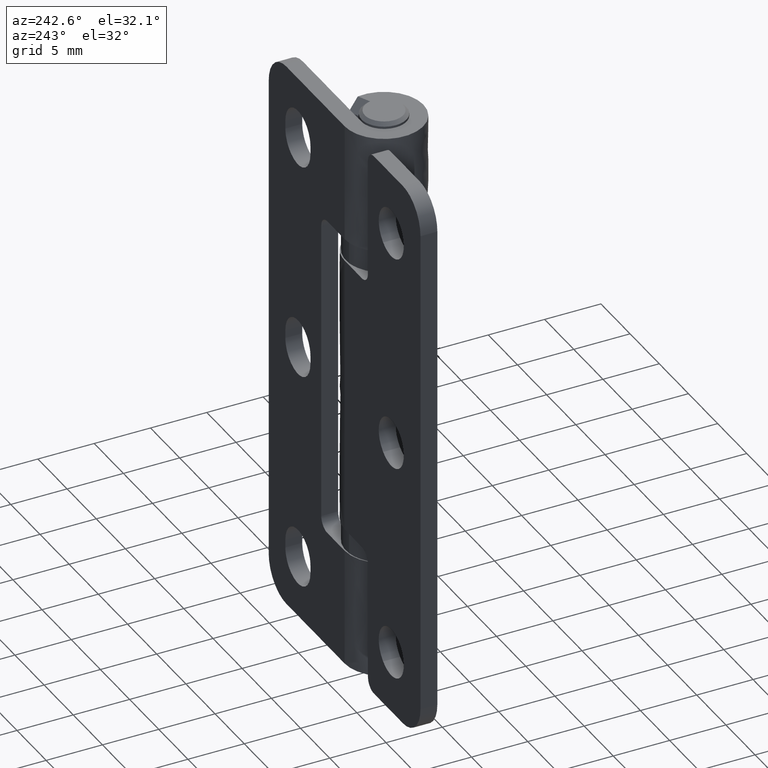
[diagram: clean part render]
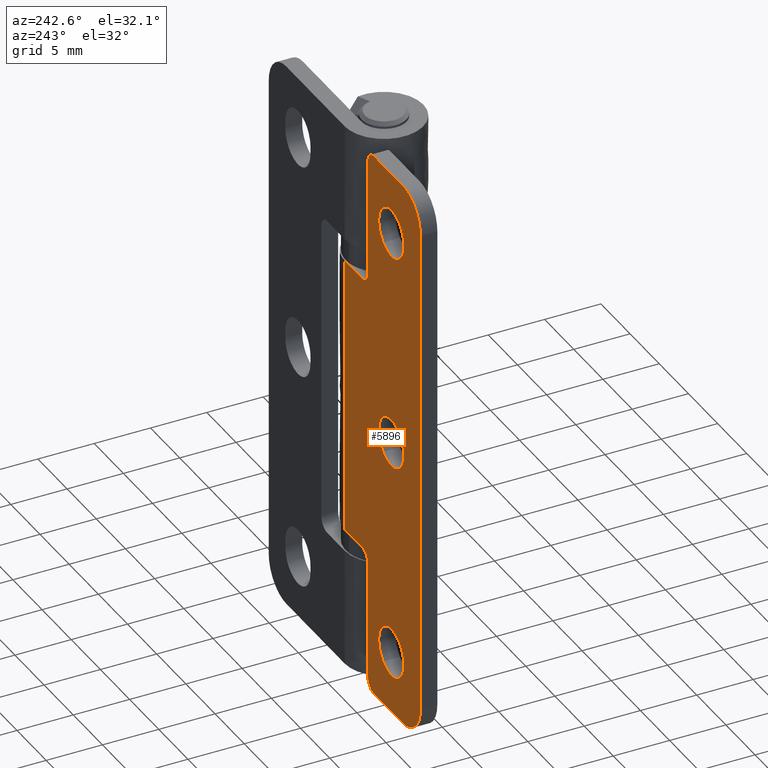
[diagram: same view with one face highlighted and labeled with its STEP entity id]
A machine part, auxiliary view. The second image highlights one B-rep face of the part: STEP entity #5896.
In plain terms, the highlighted face is a freeform B-spline surface patch.
Its self-contained STEP definition (entity closure, byte-faithful):
#4985=CARTESIAN_POINT('',(-6.603688517597423,3.500000000000000,42.865125618249706));
#4986=VERTEX_POINT('',#4985);
#4992=CARTESIAN_POINT('',(-10.150000000000571,3.500000000000000,44.500000000000000));
#4993=VERTEX_POINT('',#4992);
#4994=CARTESIAN_POINT('',(-10.150000000000571,3.500000000000000,44.500000000000000));
#4995=CARTESIAN_POINT('',(-10.150000000000773,3.500000000000000,42.350000000000236));
#4996=CARTESIAN_POINT('',(-8.000000000001203,3.500000000000000,42.350000000000747));
#4997=CARTESIAN_POINT('',(-7.206824484945157,3.500000000000001,42.350000000000932));
#4998=CARTESIAN_POINT('',(-6.603688517597423,3.500000000000000,42.865125618249714));
#5006=(BOUNDED_CURVE()B_SPLINE_CURVE(2,(#4994,#4995,#4996,#4997,#4998),.UNSPECIFIED.,.F.,.U.)B_SPLINE_CURVE_WITH_KNOTS((3,2,3),(0.500000000000000,0.750000000000000,0.863142992976542),.UNSPECIFIED.)CURVE()GEOMETRIC_REPRESENTATION_ITEM()RATIONAL_B_SPLINE_CURVE((1.0,0.707106781186547,1.0,0.867444738403651,0.854871069061697))REPRESENTATION_ITEM(''));
#5007=EDGE_CURVE('',#4993,#4986,#5006,.T.);
#5009=CARTESIAN_POINT('',(-9.396311482403718,3.500000000000000,46.134874381750294));
#5010=VERTEX_POINT('',#5009);
#5011=CARTESIAN_POINT('',(-9.396311482403718,3.500000000000000,46.134874381750279));
#5012=CARTESIAN_POINT('',(-10.150000000000137,3.499999999999999,45.491165028284748));
#5013=CARTESIAN_POINT('',(-10.150000000000571,3.500000000000000,44.500000000000000));
#5021=(BOUNDED_CURVE()B_SPLINE_CURVE(2,(#5011,#5012,#5013),.UNSPECIFIED.,.F.,.U.)B_SPLINE_CURVE_WITH_KNOTS((3,3),(0.363142992976542,0.500000000000000),.UNSPECIFIED.)CURVE()GEOMETRIC_REPRESENTATION_ITEM()RATIONAL_B_SPLINE_CURVE((0.854871069061697,0.839662042782896,1.0))REPRESENTATION_ITEM(''));
#5022=EDGE_CURVE('',#5010,#4993,#5021,.T.);
#5102=CARTESIAN_POINT('',(-5.850000000000571,3.500000000000000,44.500000000000000));
#5103=VERTEX_POINT('',#5102);
#5104=CARTESIAN_POINT('',(-5.850000000000571,3.500000000000000,44.500000000000000));
#5105=CARTESIAN_POINT('',(-5.850000000000369,3.500000000000000,46.649999999999764));
#5106=CARTESIAN_POINT('',(-7.999999999999937,3.500000000000000,46.649999999999260));
#5107=CARTESIAN_POINT('',(-8.793175515055982,3.500000000000000,46.649999999999068));
#5108=CARTESIAN_POINT('',(-9.396311482403718,3.500000000000000,46.134874381750279));
#5116=(BOUNDED_CURVE()B_SPLINE_CURVE(2,(#5104,#5105,#5106,#5107,#5108),.UNSPECIFIED.,.F.,.U.)B_SPLINE_CURVE_WITH_KNOTS((3,2,3),(0.0,0.250000000000000,0.363142992976542),.UNSPECIFIED.)CURVE()GEOMETRIC_REPRESENTATION_ITEM()RATIONAL_B_SPLINE_CURVE((1.0,0.707106781186547,1.0,0.867444738403651,0.854871069061697))REPRESENTATION_ITEM(''));
#5117=EDGE_CURVE('',#5103,#5010,#5116,.T.);
#5119=CARTESIAN_POINT('',(-6.603688517597423,3.500000000000000,42.865125618249714));
#5120=CARTESIAN_POINT('',(-5.850000000001002,3.500000000000000,43.508834971715260));
#5121=CARTESIAN_POINT('',(-5.850000000000571,3.500000000000000,44.500000000000000));
#5129=(BOUNDED_CURVE()B_SPLINE_CURVE(2,(#5119,#5120,#5121),.UNSPECIFIED.,.F.,.U.)B_SPLINE_CURVE_WITH_KNOTS((3,3),(0.863142992976542,1.0),.UNSPECIFIED.)CURVE()GEOMETRIC_REPRESENTATION_ITEM()RATIONAL_B_SPLINE_CURVE((0.854871069061697,0.839662042782896,1.0))REPRESENTATION_ITEM(''));
#5130=EDGE_CURVE('',#4986,#5103,#5129,.T.);
#5171=CARTESIAN_POINT('',(-6.603688517597423,3.500000000000000,23.365125618249710));
#5172=VERTEX_POINT('',#5171);
#5178=CARTESIAN_POINT('',(-10.150000000000571,3.500000000000000,25.0));
#5179=VERTEX_POINT('',#5178);
#5180=CARTESIAN_POINT('',(-10.150000000000571,3.500000000000000,25.0));
#5181=CARTESIAN_POINT('',(-10.150000000000773,3.500000000000000,22.850000000000239));
#5182=CARTESIAN_POINT('',(-8.000000000001204,3.500000000000000,22.850000000000740));
#5183=CARTESIAN_POINT('',(-7.206824484945156,3.500000000000000,22.850000000000932));
#5184=CARTESIAN_POINT('',(-6.603688517597423,3.500000000000000,23.365125618249710));
#5192=(BOUNDED_CURVE()B_SPLINE_CURVE(2,(#5180,#5181,#5182,#5183,#5184),.UNSPECIFIED.,.F.,.U.)B_SPLINE_CURVE_WITH_KNOTS((3,2,3),(0.500000000000000,0.750000000000000,0.863142992976542),.UNSPECIFIED.)CURVE()GEOMETRIC_REPRESENTATION_ITEM()RATIONAL_B_SPLINE_CURVE((1.0,0.707106781186547,1.0,0.867444738403651,0.854871069061697))REPRESENTATION_ITEM(''));
#5193=EDGE_CURVE('',#5179,#5172,#5192,.T.);
#5195=CARTESIAN_POINT('',(-9.396311482403720,3.500000000000000,26.634874381750290));
#5196=VERTEX_POINT('',#5195);
#5197=CARTESIAN_POINT('',(-9.396311482403720,3.500000000000000,26.634874381750290));
#5198=CARTESIAN_POINT('',(-10.150000000000137,3.500000000000000,25.991165028284740));
#5199=CARTESIAN_POINT('',(-10.150000000000571,3.500000000000000,25.0));
#5207=(BOUNDED_CURVE()B_SPLINE_CURVE(2,(#5197,#5198,#5199),.UNSPECIFIED.,.F.,.U.)B_SPLINE_CURVE_WITH_KNOTS((3,3),(0.363142992976542,0.500000000000000),.UNSPECIFIED.)CURVE()GEOMETRIC_REPRESENTATION_ITEM()RATIONAL_B_SPLINE_CURVE((0.854871069061697,0.839662042782897,1.0))REPRESENTATION_ITEM(''));
#5208=EDGE_CURVE('',#5196,#5179,#5207,.T.);
#5289=CARTESIAN_POINT('',(-5.850000000000571,3.500000000000000,25.0));
#5290=VERTEX_POINT('',#5289);
#5291=CARTESIAN_POINT('',(-5.850000000000571,3.500000000000000,25.0));
#5292=CARTESIAN_POINT('',(-5.850000000000369,3.500000000000000,27.149999999999771));
#5293=CARTESIAN_POINT('',(-7.999999999999936,3.500000000000000,27.149999999999260));
#5294=CARTESIAN_POINT('',(-8.793175515055985,3.500000000000001,27.149999999999075));
#5295=CARTESIAN_POINT('',(-9.396311482403720,3.500000000000000,26.634874381750290));
#5303=(BOUNDED_CURVE()B_SPLINE_CURVE(2,(#5291,#5292,#5293,#5294,#5295),.UNSPECIFIED.,.F.,.U.)B_SPLINE_CURVE_WITH_KNOTS((3,2,3),(0.0,0.250000000000000,0.363142992976542),.UNSPECIFIED.)CURVE()GEOMETRIC_REPRESENTATION_ITEM()RATIONAL_B_SPLINE_CURVE((1.0,0.707106781186547,1.0,0.867444738403651,0.854871069061697))REPRESENTATION_ITEM(''));
#5304=EDGE_CURVE('',#5290,#5196,#5303,.T.);
#5306=CARTESIAN_POINT('',(-6.603688517597423,3.500000000000000,23.365125618249710));
#5307=CARTESIAN_POINT('',(-5.850000000001006,3.500000000000001,24.008834971715252));
#5308=CARTESIAN_POINT('',(-5.850000000000571,3.500000000000000,25.0));
#5316=(BOUNDED_CURVE()B_SPLINE_CURVE(2,(#5306,#5307,#5308),.UNSPECIFIED.,.F.,.U.)B_SPLINE_CURVE_WITH_KNOTS((3,3),(0.863142992976542,1.0),.UNSPECIFIED.)CURVE()GEOMETRIC_REPRESENTATION_ITEM()RATIONAL_B_SPLINE_CURVE((0.854871069061697,0.839662042782897,1.0))REPRESENTATION_ITEM(''));
#5317=EDGE_CURVE('',#5172,#5290,#5316,.T.);
#5358=CARTESIAN_POINT('',(-6.603688517597423,3.500000000000000,3.865125618249712));
#5359=VERTEX_POINT('',#5358);
#5365=CARTESIAN_POINT('',(-10.150000000000571,3.500000000000000,5.500000000000000));
#5366=VERTEX_POINT('',#5365);
#5367=CARTESIAN_POINT('',(-10.150000000000571,3.500000000000000,5.500000000000000));
#5368=CARTESIAN_POINT('',(-10.150000000000773,3.500000000000000,3.350000000000234));
#5369=CARTESIAN_POINT('',(-8.000000000001203,3.500000000000000,3.350000000000740));
#5370=CARTESIAN_POINT('',(-7.206824484945157,3.500000000000001,3.350000000000928));
#5371=CARTESIAN_POINT('',(-6.603688517597423,3.500000000000000,3.865125618249711));
#5379=(BOUNDED_CURVE()B_SPLINE_CURVE(2,(#5367,#5368,#5369,#5370,#5371),.UNSPECIFIED.,.F.,.U.)B_SPLINE_CURVE_WITH_KNOTS((3,2,3),(0.500000000000000,0.750000000000000,0.863142992976542),.UNSPECIFIED.)CURVE()GEOMETRIC_REPRESENTATION_ITEM()RATIONAL_B_SPLINE_CURVE((1.0,0.707106781186547,1.0,0.867444738403651,0.854871069061697))REPRESENTATION_ITEM(''));
#5380=EDGE_CURVE('',#5366,#5359,#5379,.T.);
#5382=CARTESIAN_POINT('',(-9.396311482403718,3.500000000000000,7.134874381750288));
#5383=VERTEX_POINT('',#5382);
#5384=CARTESIAN_POINT('',(-9.396311482403718,3.500000000000000,7.134874381750288));
#5385=CARTESIAN_POINT('',(-10.150000000000137,3.499999999999999,6.491165028284749));
#5386=CARTESIAN_POINT('',(-10.150000000000571,3.500000000000000,5.500000000000000));
#5394=(BOUNDED_CURVE()B_SPLINE_CURVE(2,(#5384,#5385,#5386),.UNSPECIFIED.,.F.,.U.)B_SPLINE_CURVE_WITH_KNOTS((3,3),(0.363142992976542,0.500000000000000),.UNSPECIFIED.)CURVE()GEOMETRIC_REPRESENTATION_ITEM()RATIONAL_B_SPLINE_CURVE((0.854871069061697,0.839662042782896,1.0))REPRESENTATION_ITEM(''));
#5395=EDGE_CURVE('',#5383,#5366,#5394,.T.);
#5476=CARTESIAN_POINT('',(-5.850000000000571,3.500000000000000,5.500000000000000));
#5477=VERTEX_POINT('',#5476);
#5478=CARTESIAN_POINT('',(-5.850000000000571,3.500000000000000,5.500000000000000));
#5479=CARTESIAN_POINT('',(-5.850000000000369,3.500000000000000,7.649999999999767));
#5480=CARTESIAN_POINT('',(-7.999999999999937,3.500000000000000,7.649999999999258));
#5481=CARTESIAN_POINT('',(-8.793175515055982,3.500000000000000,7.649999999999070));
#5482=CARTESIAN_POINT('',(-9.396311482403718,3.500000000000000,7.134874381750288));
#5490=(BOUNDED_CURVE()B_SPLINE_CURVE(2,(#5478,#5479,#5480,#5481,#5482),.UNSPECIFIED.,.F.,.U.)B_SPLINE_CURVE_WITH_KNOTS((3,2,3),(0.0,0.250000000000000,0.363142992976542),.UNSPECIFIED.)CURVE()GEOMETRIC_REPRESENTATION_ITEM()RATIONAL_B_SPLINE_CURVE((1.0,0.707106781186547,1.0,0.867444738403651,0.854871069061697))REPRESENTATION_ITEM(''));
#5491=EDGE_CURVE('',#5477,#5383,#5490,.T.);
#5493=CARTESIAN_POINT('',(-6.603688517597423,3.500000000000000,3.865125618249711));
#5494=CARTESIAN_POINT('',(-5.850000000001003,3.500000000000000,4.508834971715250));
#5495=CARTESIAN_POINT('',(-5.850000000000571,3.500000000000000,5.500000000000000));
#5503=(BOUNDED_CURVE()B_SPLINE_CURVE(2,(#5493,#5494,#5495),.UNSPECIFIED.,.F.,.U.)B_SPLINE_CURVE_WITH_KNOTS((3,3),(0.863142992976542,1.0),.UNSPECIFIED.)CURVE()GEOMETRIC_REPRESENTATION_ITEM()RATIONAL_B_SPLINE_CURVE((0.854871069061697,0.839662042782897,1.0))REPRESENTATION_ITEM(''));
#5504=EDGE_CURVE('',#5359,#5477,#5503,.T.);
#5541=CARTESIAN_POINT('',(-10.000000000000901,3.500000000000000,50.0));
#5542=VERTEX_POINT('',#5541);
#5548=CARTESIAN_POINT('',(-13.000000000000901,3.500000000000000,47.0));
#5549=VERTEX_POINT('',#5548);
#5550=CARTESIAN_POINT('',(-13.000000000000901,3.500000000000000,47.0));
#5551=CARTESIAN_POINT('',(-13.000000000000897,3.499999999999999,50.0));
#5552=CARTESIAN_POINT('',(-10.000000000000901,3.500000000000000,50.0));
#5560=(BOUNDED_CURVE()B_SPLINE_CURVE(2,(#5550,#5551,#5552),.UNSPECIFIED.,.F.,.U.)CURVE()GEOMETRIC_REPRESENTATION_ITEM()QUASI_UNIFORM_CURVE()RATIONAL_B_SPLINE_CURVE((1.0,0.707106781186548,1.0))REPRESENTATION_ITEM(''));
#5561=EDGE_CURVE('',#5549,#5542,#5560,.T.);
#5602=CARTESIAN_POINT('',(-13.000000000000901,3.500000000000000,3.0));
#5603=VERTEX_POINT('',#5602);
#5609=CARTESIAN_POINT('',(-10.000000000000901,3.500000000000000,-2.775558E-014));
#5610=VERTEX_POINT('',#5609);
#5611=CARTESIAN_POINT('',(-10.000000000000901,3.500000000000000,0.0));
#5612=CARTESIAN_POINT('',(-13.000000000000897,3.499999999999999,0.0));
#5613=CARTESIAN_POINT('',(-13.000000000000901,3.500000000000000,3.0));
#5621=(BOUNDED_CURVE()B_SPLINE_CURVE(2,(#5611,#5612,#5613),.UNSPECIFIED.,.F.,.U.)CURVE()GEOMETRIC_REPRESENTATION_ITEM()QUASI_UNIFORM_CURVE()RATIONAL_B_SPLINE_CURVE((1.0,0.707106781186548,1.0))REPRESENTATION_ITEM(''));
#5622=EDGE_CURVE('',#5610,#5603,#5621,.T.);
#5645=CARTESIAN_POINT('',(-5.000000000000400,3.500000000000000,-2.775558E-014));
#5646=VERTEX_POINT('',#5645);
#5647=CARTESIAN_POINT('',(-10.000000000000901,3.500000000000000,-2.775558E-014));
#5648=CARTESIAN_POINT('',(-5.000000000000400,3.500000000000000,-2.775558E-014));
#5649=QUASI_UNIFORM_CURVE('',1,(#5647,#5648),.UNSPECIFIED.,.F.,.U.);
#5650=EDGE_CURVE('',#5610,#5646,#5649,.T.);
#5665=CARTESIAN_POINT('',(-5.000000000000400,3.500000000000000,50.0));
#5666=VERTEX_POINT('',#5665);
#5667=CARTESIAN_POINT('',(-10.000000000000901,3.500000000000000,50.0));
#5668=CARTESIAN_POINT('',(-5.000000000000400,3.500000000000000,50.0));
#5669=QUASI_UNIFORM_CURVE('',1,(#5667,#5668),.UNSPECIFIED.,.F.,.U.);
#5670=EDGE_CURVE('',#5542,#5666,#5669,.T.);
#5693=CARTESIAN_POINT('',(-13.000000000000901,3.500000000000000,47.0));
#5694=CARTESIAN_POINT('',(-13.000000000000901,3.500000000000000,3.0));
#5695=QUASI_UNIFORM_CURVE('',1,(#5693,#5694),.UNSPECIFIED.,.F.,.U.);
#5696=EDGE_CURVE('',#5549,#5603,#5695,.T.);
#5773=CARTESIAN_POINT('',(-13.649349974804419,3.500000000000000,-2.497499903090326));
#5774=CARTESIAN_POINT('',(-13.649349974804419,3.500000000000000,52.497501244194808));
#5775=CARTESIAN_POINT('',(0.649350323490693,3.500000000000000,-2.497499903090326));
#5776=CARTESIAN_POINT('',(0.649350323490693,3.500000000000000,52.497501244194808));
#5777=B_SPLINE_SURFACE_WITH_KNOTS('',1,1,((#5773,#5775),(#5774,#5776)),.UNSPECIFIED.,.F.,.F.,.U.,(2,2),(2,2),(0.0,54.995001147285137),(0.0,14.298700298295120),.UNSPECIFIED.);
#5778=ORIENTED_EDGE('',*,*,#5650,.F.);
#5779=ORIENTED_EDGE('',*,*,#5622,.T.);
#5780=ORIENTED_EDGE('',*,*,#5696,.F.);
#5781=ORIENTED_EDGE('',*,*,#5561,.T.);
#5782=ORIENTED_EDGE('',*,*,#5670,.T.);
#5783=CARTESIAN_POINT('',(-4.000000000000570,3.500000000000000,49.0));
#5784=VERTEX_POINT('',#5783);
#5785=CARTESIAN_POINT('',(-5.000000000000400,3.500000000000000,50.0));
#5786=CARTESIAN_POINT('',(-4.000000000000400,3.499999999999999,50.0));
#5787=CARTESIAN_POINT('',(-4.000000000000400,3.500000000000000,49.0));
#5795=(BOUNDED_CURVE()B_SPLINE_CURVE(2,(#5785,#5786,#5787),.UNSPECIFIED.,.F.,.U.)CURVE()GEOMETRIC_REPRESENTATION_ITEM()QUASI_UNIFORM_CURVE()RATIONAL_B_SPLINE_CURVE((1.0,0.707106781186548,1.0))REPRESENTATION_ITEM(''));
#5796=EDGE_CURVE('',#5666,#5784,#5795,.T.);
#5797=ORIENTED_EDGE('',*,*,#5796,.T.);
#5798=CARTESIAN_POINT('',(-4.000000000000570,3.500000000000000,38.500000000000000));
#5799=VERTEX_POINT('',#5798);
#5800=CARTESIAN_POINT('',(-4.000000000000570,3.500000000000000,38.500000000000000));
#5801=CARTESIAN_POINT('',(-4.000000000000570,3.500000000000000,49.0));
#5802=QUASI_UNIFORM_CURVE('',1,(#5800,#5801),.UNSPECIFIED.,.F.,.U.);
#5803=EDGE_CURVE('',#5799,#5784,#5802,.T.);
#5804=ORIENTED_EDGE('',*,*,#5803,.F.);
#5805=CARTESIAN_POINT('',(-3.000000000000400,3.500000000000000,37.500000000000000));
#5806=VERTEX_POINT('',#5805);
#5807=CARTESIAN_POINT('',(-4.000000000000570,3.500000000000000,38.500000000000000));
#5808=CARTESIAN_POINT('',(-4.000000000000400,3.499999999999999,37.499999999999993));
#5809=CARTESIAN_POINT('',(-3.000000000000400,3.500000000000000,37.500000000000000));
#5817=(BOUNDED_CURVE()B_SPLINE_CURVE(2,(#5807,#5808,#5809),.UNSPECIFIED.,.F.,.U.)CURVE()GEOMETRIC_REPRESENTATION_ITEM()QUASI_UNIFORM_CURVE()RATIONAL_B_SPLINE_CURVE((1.0,0.707106781186548,1.0))REPRESENTATION_ITEM(''));
#5818=EDGE_CURVE('',#5799,#5806,#5817,.T.);
#5819=ORIENTED_EDGE('',*,*,#5818,.T.);
#5820=CARTESIAN_POINT('',(0.0,3.500000000000000,37.500000000000000));
#5821=VERTEX_POINT('',#5820);
#5822=CARTESIAN_POINT('',(0.0,3.500000000000000,37.500000000000000));
#5823=CARTESIAN_POINT('',(-3.000000000000400,3.500000000000000,37.500000000000000));
#5824=QUASI_UNIFORM_CURVE('',1,(#5822,#5823),.UNSPECIFIED.,.F.,.U.);
#5825=EDGE_CURVE('',#5821,#5806,#5824,.T.);
#5826=ORIENTED_EDGE('',*,*,#5825,.F.);
#5827=CARTESIAN_POINT('',(0.0,3.500000000000000,12.500000000000000));
#5828=VERTEX_POINT('',#5827);
#5829=CARTESIAN_POINT('',(0.0,3.500000000000000,37.500000000000000));
#5830=CARTESIAN_POINT('',(0.0,3.500000000000000,12.500000000000000));
#5831=QUASI_UNIFORM_CURVE('',1,(#5829,#5830),.UNSPECIFIED.,.F.,.U.);
#5832=EDGE_CURVE('',#5821,#5828,#5831,.T.);
#5833=ORIENTED_EDGE('',*,*,#5832,.T.);
#5834=CARTESIAN_POINT('',(-3.000000000000400,3.500000000000000,12.500000000000000));
#5835=VERTEX_POINT('',#5834);
#5836=CARTESIAN_POINT('',(-3.000000000000400,3.500000000000000,12.500000000000000));
#5837=CARTESIAN_POINT('',(0.0,3.500000000000000,12.500000000000000));
#5838=QUASI_UNIFORM_CURVE('',1,(#5836,#5837),.UNSPECIFIED.,.F.,.U.);
#5839=EDGE_CURVE('',#5835,#5828,#5838,.T.);
#5840=ORIENTED_EDGE('',*,*,#5839,.F.);
#5841=CARTESIAN_POINT('',(-4.000000000000570,3.500000000000000,11.500000000000000));
#5842=VERTEX_POINT('',#5841);
#5843=CARTESIAN_POINT('',(-3.000000000000400,3.500000000000000,12.500000000000000));
#5844=CARTESIAN_POINT('',(-4.000000000000400,3.499999999999949,12.500000000000000));
#5845=CARTESIAN_POINT('',(-4.000000000000400,3.499999999999950,11.500000000000000));
#5853=(BOUNDED_CURVE()B_SPLINE_CURVE(2,(#5843,#5844,#5845),.UNSPECIFIED.,.F.,.U.)CURVE()GEOMETRIC_REPRESENTATION_ITEM()QUASI_UNIFORM_CURVE()RATIONAL_B_SPLINE_CURVE((1.0,0.707106781186548,1.0))REPRESENTATION_ITEM(''));
#5854=EDGE_CURVE('',#5835,#5842,#5853,.T.);
#5855=ORIENTED_EDGE('',*,*,#5854,.T.);
#5856=CARTESIAN_POINT('',(-4.000000000000570,3.500000000000000,0.999999999999971));
#5857=VERTEX_POINT('',#5856);
#5858=CARTESIAN_POINT('',(-4.000000000000570,3.500000000000000,0.999999999999971));
#5859=CARTESIAN_POINT('',(-4.000000000000570,3.500000000000000,11.500000000000000));
#5860=QUASI_UNIFORM_CURVE('',1,(#5858,#5859),.UNSPECIFIED.,.F.,.U.);
#5861=EDGE_CURVE('',#5857,#5842,#5860,.T.);
#5862=ORIENTED_EDGE('',*,*,#5861,.F.);
#5863=CARTESIAN_POINT('',(-4.000000000000570,3.500000000000000,0.999999999999971));
#5864=CARTESIAN_POINT('',(-4.000000000000400,3.499999999999999,-2.905662E-014));
#5865=CARTESIAN_POINT('',(-5.000000000000400,3.500000000000000,-2.905662E-014));
#5873=(BOUNDED_CURVE()B_SPLINE_CURVE(2,(#5863,#5864,#5865),.UNSPECIFIED.,.F.,.U.)CURVE()GEOMETRIC_REPRESENTATION_ITEM()QUASI_UNIFORM_CURVE()RATIONAL_B_SPLINE_CURVE((1.0,0.707106781186548,1.0))REPRESENTATION_ITEM(''));
#5874=EDGE_CURVE('',#5857,#5646,#5873,.T.);
#5875=ORIENTED_EDGE('',*,*,#5874,.T.);
#5876=EDGE_LOOP('',(#5778,#5779,#5780,#5781,#5782,#5797,#5804,#5819,#5826,#5833,#5840,#5855,#5862,#5875));
#5877=FACE_OUTER_BOUND('',#5876,.T.);
#5878=ORIENTED_EDGE('',*,*,#5491,.T.);
#5879=ORIENTED_EDGE('',*,*,#5395,.T.);
#5880=ORIENTED_EDGE('',*,*,#5380,.T.);
#5881=ORIENTED_EDGE('',*,*,#5504,.T.);
#5882=EDGE_LOOP('',(#5878,#5879,#5880,#5881));
#5883=FACE_BOUND('',#5882,.T.);
#5884=ORIENTED_EDGE('',*,*,#5304,.T.);
#5885=ORIENTED_EDGE('',*,*,#5208,.T.);
#5886=ORIENTED_EDGE('',*,*,#5193,.T.);
#5887=ORIENTED_EDGE('',*,*,#5317,.T.);
#5888=EDGE_LOOP('',(#5884,#5885,#5886,#5887));
#5889=FACE_BOUND('',#5888,.T.);
#5890=ORIENTED_EDGE('',*,*,#5117,.T.);
#5891=ORIENTED_EDGE('',*,*,#5022,.T.);
#5892=ORIENTED_EDGE('',*,*,#5007,.T.);
#5893=ORIENTED_EDGE('',*,*,#5130,.T.);
#5894=EDGE_LOOP('',(#5890,#5891,#5892,#5893));
#5895=FACE_BOUND('',#5894,.T.);
#5896=ADVANCED_FACE('',(#5877,#5883,#5889,#5895),#5777,.T.);